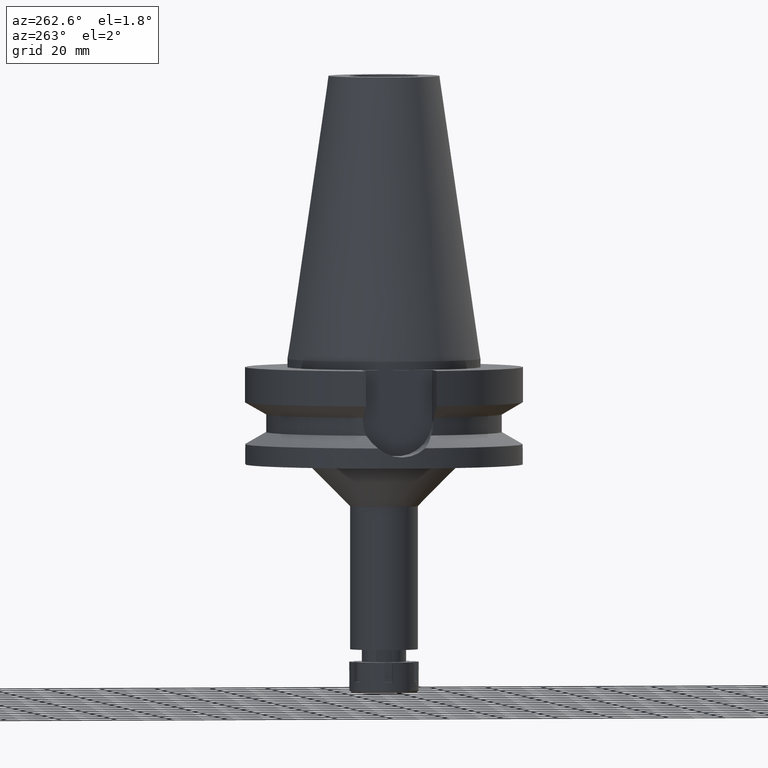
[diagram: clean part render]
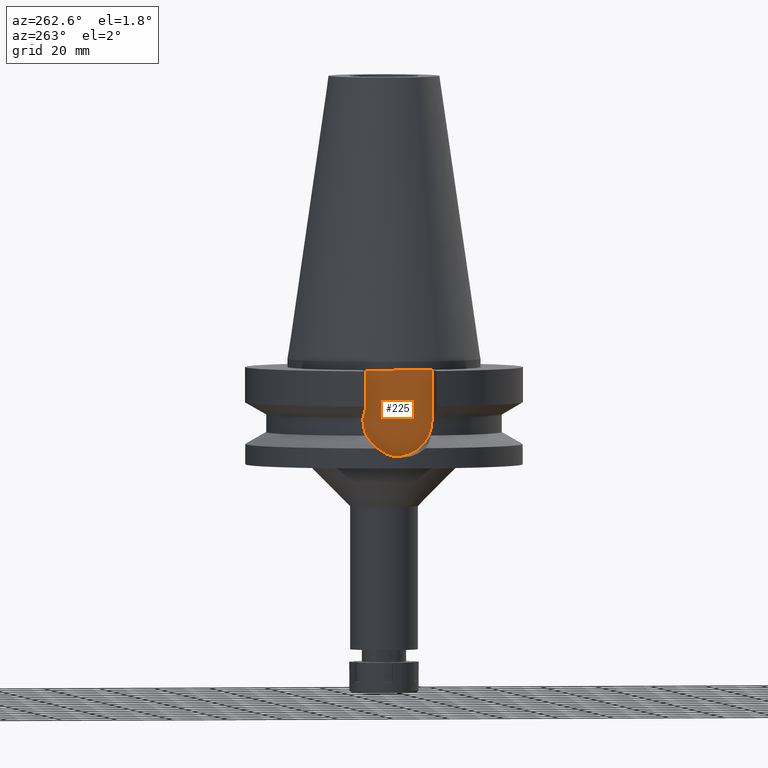
[diagram: same view with one face highlighted and labeled with its STEP entity id]
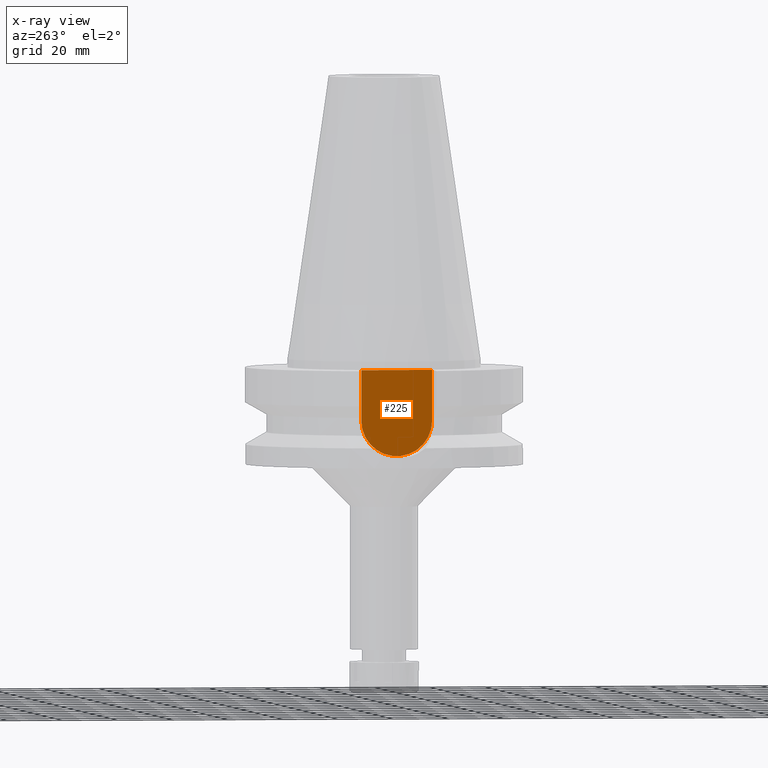
[diagram: x-ray of the same camera — body ghosted, the highlighted face saturated]
A machine part, auxiliary view. The second image highlights one B-rep face of the part: STEP entity #225.
The next image is the same camera in x-ray: the body ghosted, the highlighted face saturated — about 0% of this face is hidden behind the body in this view.
In plain terms, the highlighted planar face has unit normal (-1, 0, 0).
Its self-contained STEP definition (entity closure, byte-faithful):
#81 = PLANE ( 'NONE',  #1840 ) ;
#110 = EDGE_CURVE ( 'NONE', #116, #2508, #1645, .T. ) ;
#113 = DIRECTION ( 'NONE',  ( 0.0000000000000000000, 0.0000000000000000000, -1.000000000000000000 ) ) ;
#116 = VERTEX_POINT ( 'NONE', #2906 ) ;
#127 = ORIENTED_EDGE ( 'NONE', *, *, #302, .T. ) ;
#225 = ADVANCED_FACE ( 'NONE', ( #1281 ), #81, .T. ) ;
#302 = EDGE_CURVE ( 'NONE', #2887, #2508, #2509, .T. ) ;
#348 = VECTOR ( 'NONE', #1298, 1000.000000000000000 ) ;
#434 = DIRECTION ( 'NONE',  ( -1.000000000000000000, 0.0000000000000000000, 0.0000000000000000000 ) ) ;
#468 = VECTOR ( 'NONE', #1612, 1000.000000000000000 ) ;
#482 = CARTESIAN_POINT ( 'NONE',  ( -35.39999999999999858, -12.84999999999999964, -3.000000000000000000 ) ) ;
#542 = CIRCLE ( 'NONE', #1615, 12.84999999999999964 ) ;
#651 = CARTESIAN_POINT ( 'NONE',  ( -35.39999999999999858, 2.015768631397000034E-14, 0.0000000000000000000 ) ) ;
#857 = VECTOR ( 'NONE', #113, 1000.000000000000000 ) ;
#1176 = EDGE_CURVE ( 'NONE', #2887, #3286, #3214, .T. ) ;
#1236 = CARTESIAN_POINT ( 'NONE',  ( -35.39999999999999858, -12.84999999999999964, -3.000000000000000000 ) ) ;
#1281 = FACE_OUTER_BOUND ( 'NONE', #3234, .T. ) ;
#1298 = DIRECTION ( 'NONE',  ( 0.0000000000000000000, 0.0000000000000000000, 1.000000000000000000 ) ) ;
#1354 = CARTESIAN_POINT ( 'NONE',  ( -35.39999999999999858, 12.84999999999999964, -21.14999999999999858 ) ) ;
#1612 = DIRECTION ( 'NONE',  ( 0.0000000000000000000, 1.000000000000000000, 0.0000000000000000000 ) ) ;
#1615 = AXIS2_PLACEMENT_3D ( 'NONE', #1726, #2625, #3439 ) ;
#1645 = LINE ( 'NONE', #1354, #348 ) ;
#1726 = CARTESIAN_POINT ( 'NONE',  ( -35.39999999999999858, 1.497743035356999952E-14, -21.14999999999999858 ) ) ;
#1840 = AXIS2_PLACEMENT_3D ( 'NONE', #651, #434, #2725 ) ;
#2013 = CARTESIAN_POINT ( 'NONE',  ( -35.39999999999999858, 12.84999999999999964, -3.000000000000000000 ) ) ;
#2508 = VERTEX_POINT ( 'NONE', #2013 ) ;
#2509 = LINE ( 'NONE', #482, #468 ) ;
#2625 = DIRECTION ( 'NONE',  ( 1.000000000000000000, 0.0000000000000000000, 0.0000000000000000000 ) ) ;
#2725 = DIRECTION ( 'NONE',  ( 0.0000000000000000000, 0.0000000000000000000, 1.000000000000000000 ) ) ;
#2754 = CARTESIAN_POINT ( 'NONE',  ( -35.39999999999999858, -12.84999999999999964, -3.000000000000000000 ) ) ;
#2887 = VERTEX_POINT ( 'NONE', #2754 ) ;
#2906 = CARTESIAN_POINT ( 'NONE',  ( -35.39999999999999858, 12.84999999999999964, -21.14999999999999858 ) ) ;
#2914 = CARTESIAN_POINT ( 'NONE',  ( -35.39999999999999858, -12.84999999999999964, -21.14999999999999858 ) ) ;
#2938 = ORIENTED_EDGE ( 'NONE', *, *, #1176, .F. ) ;
#3018 = ORIENTED_EDGE ( 'NONE', *, *, #110, .F. ) ;
#3214 = LINE ( 'NONE', #1236, #857 ) ;
#3234 = EDGE_LOOP ( 'NONE', ( #3018, #3523, #2938, #127 ) ) ;
#3250 = EDGE_CURVE ( 'NONE', #3286, #116, #542, .T. ) ;
#3286 = VERTEX_POINT ( 'NONE', #2914 ) ;
#3439 = DIRECTION ( 'NONE',  ( 0.0000000000000000000, -1.000000000000000000, 0.0000000000000000000 ) ) ;
#3523 = ORIENTED_EDGE ( 'NONE', *, *, #3250, .F. ) ;